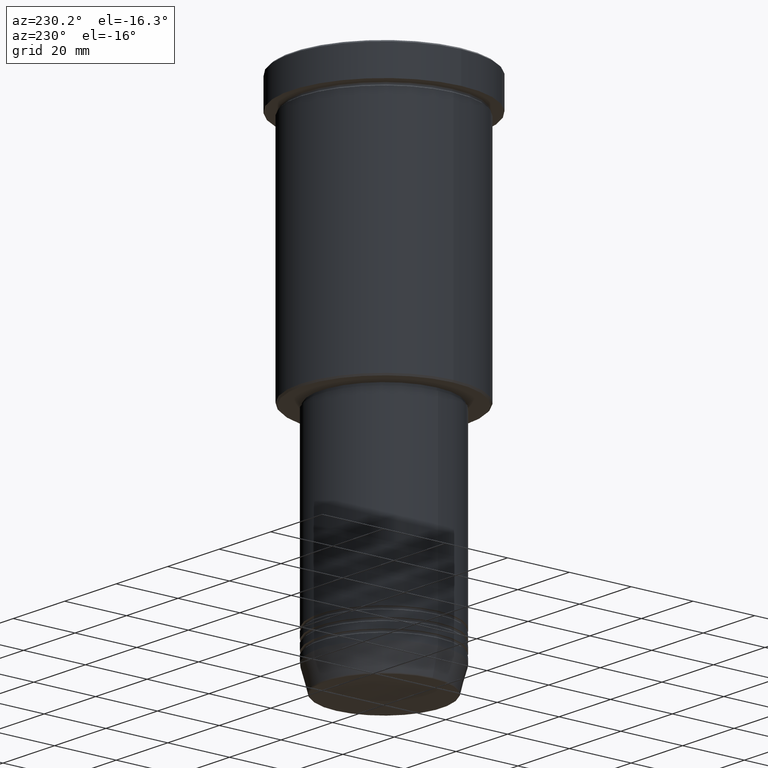
[diagram: clean part render]
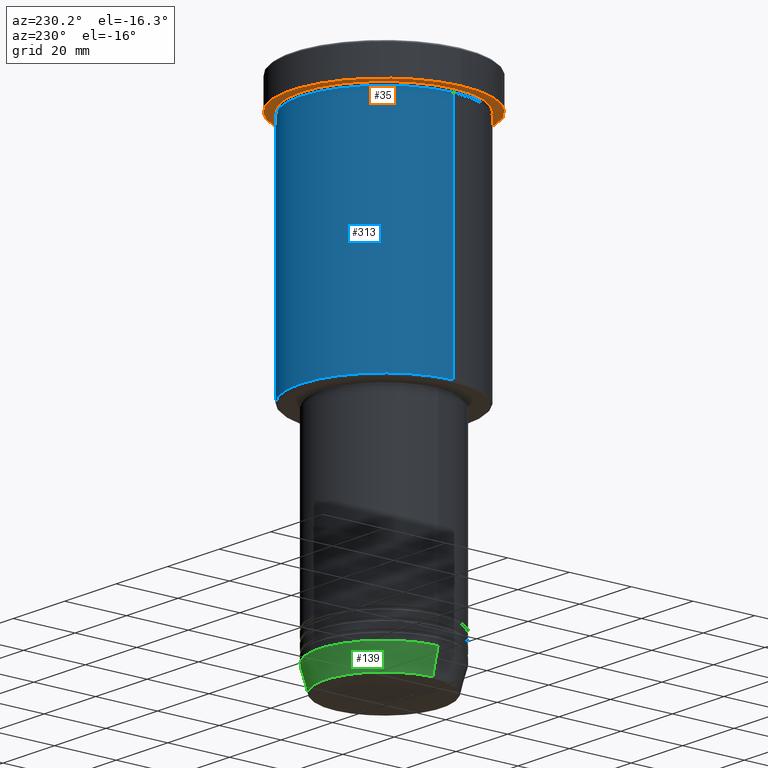
[diagram: same view with three faces highlighted in distinct colors, each labeled with its STEP entity id]
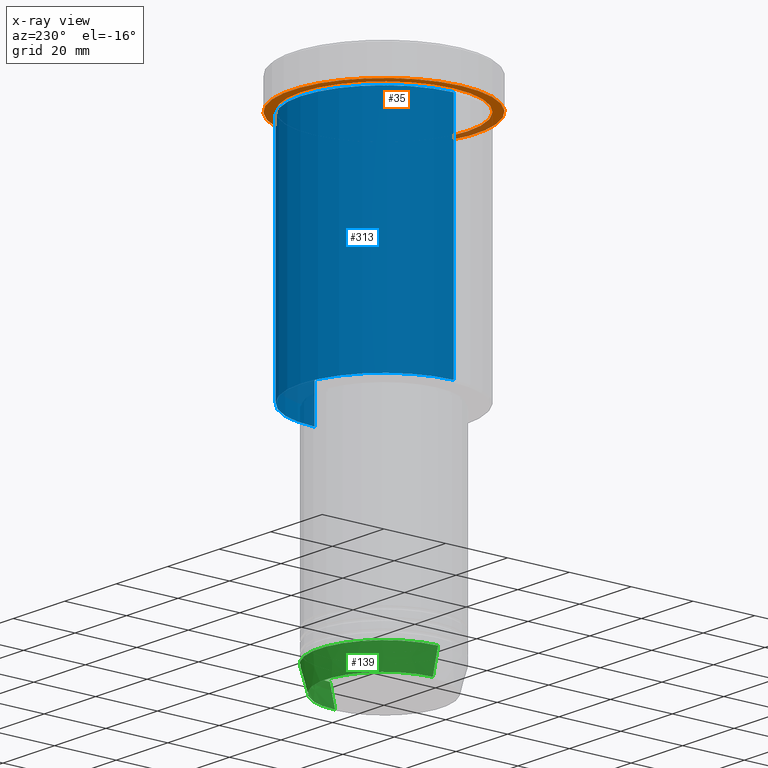
[diagram: x-ray of the same camera — body ghosted, the three highlighted faces saturated]
A machine part, auxiliary view with three faces highlighted in distinct colors.
The next image is the same camera in x-ray (body ghosted, the three faces saturated) — at least one of them is partly hidden behind the body in this view.
Their STEP definitions:

[orange] entity #35 — the highlighted planar face has unit normal (0, 0, -1).
#35 = ADVANCED_FACE ( 'NONE', ( #734, #739 ), #85, .T. ) ;
#45 = DIRECTION ( 'NONE',  ( 1.000000000000000000, 0.000000000000000000, 0.000000000000000000 ) ) ;
#62 = CARTESIAN_POINT ( 'NONE',  ( 27.00000000000000355, 3.306546357697854128E-15, -9.999999999999992895 ) ) ;
#63 = EDGE_CURVE ( 'NONE', #351, #1078, #825, .T. ) ;
#85 = PLANE ( 'NONE',  #1163 ) ;
#98 = CARTESIAN_POINT ( 'NONE',  ( -27.00000000000000355, 0.000000000000000000, -9.999999999999992895 ) ) ;
#100 = ORIENTED_EDGE ( 'NONE', *, *, #321, .F. ) ;
#168 = DIRECTION ( 'NONE',  ( -1.000000000000000000, 0.000000000000000000, -0.000000000000000000 ) ) ;
#175 = AXIS2_PLACEMENT_3D ( 'NONE', #338, #784, #45 ) ;
#236 = DIRECTION ( 'NONE',  ( -0.000000000000000000, -0.000000000000000000, 1.000000000000000000 ) ) ;
#238 = ORIENTED_EDGE ( 'NONE', *, *, #63, .T. ) ;
#246 = VERTEX_POINT ( 'NONE', #751 ) ;
#288 = CIRCLE ( 'NONE', #175, 30.00000000000000000 ) ;
#291 = DIRECTION ( 'NONE',  ( 0.000000000000000000, 0.000000000000000000, -1.000000000000000000 ) ) ;
#321 = EDGE_CURVE ( 'NONE', #246, #602, #288, .T. ) ;
#338 = CARTESIAN_POINT ( 'NONE',  ( 0.000000000000000000, 0.000000000000000000, -9.999999999999992895 ) ) ;
#348 = EDGE_LOOP ( 'NONE', ( #1167, #100 ) ) ;
#351 = VERTEX_POINT ( 'NONE', #62 ) ;
#600 = DIRECTION ( 'NONE',  ( 1.000000000000000000, 0.000000000000000000, 0.000000000000000000 ) ) ;
#602 = VERTEX_POINT ( 'NONE', #1162 ) ;
#608 = AXIS2_PLACEMENT_3D ( 'NONE', #809, #614, #702 ) ;
#614 = DIRECTION ( 'NONE',  ( -0.000000000000000000, -0.000000000000000000, 1.000000000000000000 ) ) ;
#630 = CARTESIAN_POINT ( 'NONE',  ( 0.000000000000000000, 30.00000000000000000, -9.999999999999992895 ) ) ;
#637 = DIRECTION ( 'NONE',  ( -0.000000000000000000, -0.000000000000000000, 1.000000000000000000 ) ) ;
#676 = ORIENTED_EDGE ( 'NONE', *, *, #975, .T. ) ;
#702 = DIRECTION ( 'NONE',  ( -1.000000000000000000, 0.000000000000000000, 0.000000000000000000 ) ) ;
#706 = CIRCLE ( 'NONE', #804, 30.00000000000000000 ) ;
#734 = FACE_BOUND ( 'NONE', #1007, .T. ) ;
#739 = FACE_OUTER_BOUND ( 'NONE', #348, .T. ) ;
#751 = CARTESIAN_POINT ( 'NONE',  ( -30.00000000000000000, 3.673940397442059178E-15, -9.999999999999992895 ) ) ;
#767 = CARTESIAN_POINT ( 'NONE',  ( 0.000000000000000000, 0.000000000000000000, -9.999999999999992895 ) ) ;
#784 = DIRECTION ( 'NONE',  ( -0.000000000000000000, -0.000000000000000000, 1.000000000000000000 ) ) ;
#802 = CIRCLE ( 'NONE', #608, 27.00000000000000355 ) ;
#804 = AXIS2_PLACEMENT_3D ( 'NONE', #767, #236, #600 ) ;
#809 = CARTESIAN_POINT ( 'NONE',  ( 0.000000000000000000, 0.000000000000000000, -9.999999999999992895 ) ) ;
#825 = CIRCLE ( 'NONE', #1143, 27.00000000000000355 ) ;
#888 = EDGE_CURVE ( 'NONE', #602, #246, #706, .T. ) ;
#910 = CARTESIAN_POINT ( 'NONE',  ( 0.000000000000000000, 0.000000000000000000, -9.999999999999992895 ) ) ;
#975 = EDGE_CURVE ( 'NONE', #1078, #351, #802, .T. ) ;
#1007 = EDGE_LOOP ( 'NONE', ( #676, #238 ) ) ;
#1078 = VERTEX_POINT ( 'NONE', #98 ) ;
#1143 = AXIS2_PLACEMENT_3D ( 'NONE', #910, #637, #1177 ) ;
#1162 = CARTESIAN_POINT ( 'NONE',  ( 30.00000000000000000, 0.000000000000000000, -9.999999999999992895 ) ) ;
#1163 = AXIS2_PLACEMENT_3D ( 'NONE', #630, #291, #168 ) ;
#1167 = ORIENTED_EDGE ( 'NONE', *, *, #888, .F. ) ;
#1177 = DIRECTION ( 'NONE',  ( -1.000000000000000000, 0.000000000000000000, 0.000000000000000000 ) ) ;

[blue] entity #313 — the highlighted cylindrical surface (partial cylindrical patch) has radius 27 mm, axis along (-0, -0, 1).
#44 = ORIENTED_EDGE ( 'NONE', *, *, #1112, .T. ) ;
#61 = VECTOR ( 'NONE', #197, 1000.000000000000000 ) ;
#77 = LINE ( 'NONE', #83, #80 ) ;
#80 = VECTOR ( 'NONE', #87, 1000.000000000000000 ) ;
#83 = CARTESIAN_POINT ( 'NONE',  ( 27.00000000000000355, 0.000000000000000000, 0.000000000000000000 ) ) ;
#87 = DIRECTION ( 'NONE',  ( -0.000000000000000000, -0.000000000000000000, 1.000000000000000000 ) ) ;
#122 = CARTESIAN_POINT ( 'NONE',  ( -27.00000000000000355, 3.306546357697854128E-15, -85.49999999999997158 ) ) ;
#148 = CARTESIAN_POINT ( 'NONE',  ( 0.000000000000000000, 0.000000000000000000, 0.000000000000000000 ) ) ;
#180 = DIRECTION ( 'NONE',  ( 1.000000000000000000, 0.000000000000000000, 0.000000000000000000 ) ) ;
#197 = DIRECTION ( 'NONE',  ( -0.000000000000000000, -0.000000000000000000, 1.000000000000000000 ) ) ;
#313 = ADVANCED_FACE ( 'NONE', ( #517 ), #680, .T. ) ;
#315 = EDGE_CURVE ( 'NONE', #957, #623, #974, .T. ) ;
#320 = DIRECTION ( 'NONE',  ( 1.000000000000000000, 0.000000000000000000, 0.000000000000000000 ) ) ;
#323 = VERTEX_POINT ( 'NONE', #435 ) ;
#328 = DIRECTION ( 'NONE',  ( -1.000000000000000000, 0.000000000000000000, 0.000000000000000000 ) ) ;
#334 = CARTESIAN_POINT ( 'NONE',  ( 27.00000000000000355, 0.000000000000000000, -85.49999999999997158 ) ) ;
#347 = CARTESIAN_POINT ( 'NONE',  ( 0.000000000000000000, 0.000000000000000000, -10.99999999999999289 ) ) ;
#367 = AXIS2_PLACEMENT_3D ( 'NONE', #347, #715, #180 ) ;
#388 = CARTESIAN_POINT ( 'NONE',  ( -27.00000000000000355, 3.306546357697854128E-15, 0.000000000000000000 ) ) ;
#435 = CARTESIAN_POINT ( 'NONE',  ( -27.00000000000000355, 3.306546357697854128E-15, -10.99999999999999289 ) ) ;
#470 = EDGE_CURVE ( 'NONE', #1156, #323, #807, .T. ) ;
#474 = LINE ( 'NONE', #388, #61 ) ;
#516 = EDGE_CURVE ( 'NONE', #957, #1156, #77, .T. ) ;
#517 = FACE_OUTER_BOUND ( 'NONE', #1176, .T. ) ;
#531 = ORIENTED_EDGE ( 'NONE', *, *, #516, .F. ) ;
#623 = VERTEX_POINT ( 'NONE', #122 ) ;
#680 = CYLINDRICAL_SURFACE ( 'NONE', #1048, 27.00000000000000355 ) ;
#715 = DIRECTION ( 'NONE',  ( -0.000000000000000000, -0.000000000000000000, 1.000000000000000000 ) ) ;
#744 = CARTESIAN_POINT ( 'NONE',  ( 27.00000000000000355, 0.000000000000000000, -10.99999999999999289 ) ) ;
#792 = CARTESIAN_POINT ( 'NONE',  ( 0.000000000000000000, 0.000000000000000000, -85.49999999999997158 ) ) ;
#807 = CIRCLE ( 'NONE', #367, 27.00000000000000355 ) ;
#870 = ORIENTED_EDGE ( 'NONE', *, *, #315, .T. ) ;
#881 = AXIS2_PLACEMENT_3D ( 'NONE', #792, #981, #328 ) ;
#889 = ORIENTED_EDGE ( 'NONE', *, *, #470, .F. ) ;
#957 = VERTEX_POINT ( 'NONE', #334 ) ;
#974 = CIRCLE ( 'NONE', #881, 27.00000000000000355 ) ;
#981 = DIRECTION ( 'NONE',  ( -0.000000000000000000, -0.000000000000000000, 1.000000000000000000 ) ) ;
#1048 = AXIS2_PLACEMENT_3D ( 'NONE', #148, #1137, #320 ) ;
#1112 = EDGE_CURVE ( 'NONE', #623, #323, #474, .T. ) ;
#1137 = DIRECTION ( 'NONE',  ( -0.000000000000000000, -0.000000000000000000, 1.000000000000000000 ) ) ;
#1156 = VERTEX_POINT ( 'NONE', #744 ) ;
#1176 = EDGE_LOOP ( 'NONE', ( #870, #44, #889, #531 ) ) ;

[green] entity #139 — the highlighted conical surface has half-angle 15 deg.
#4 = EDGE_CURVE ( 'NONE', #599, #509, #789, .T. ) ;
#7 = DIRECTION ( 'NONE',  ( -0.000000000000000000, -0.000000000000000000, 1.000000000000000000 ) ) ;
#32 = CONICAL_SURFACE ( 'NONE', #463, 21.00000000000000000, 0.2617993877991500740 ) ;
#64 = VERTEX_POINT ( 'NONE', #720 ) ;
#81 = FACE_OUTER_BOUND ( 'NONE', #258, .T. ) ;
#112 = AXIS2_PLACEMENT_3D ( 'NONE', #925, #1023, #476 ) ;
#139 = ADVANCED_FACE ( 'NONE', ( #81 ), #32, .T. ) ;
#163 = EDGE_CURVE ( 'NONE', #509, #64, #727, .T. ) ;
#167 = ORIENTED_EDGE ( 'NONE', *, *, #714, .T. ) ;
#223 = LINE ( 'NONE', #254, #324 ) ;
#251 = CARTESIAN_POINT ( 'NONE',  ( 18.95570587970606624, 0.000000000000000000, -160.6294095225512422 ) ) ;
#254 = CARTESIAN_POINT ( 'NONE',  ( -21.00000000000000000, 2.571758278209441661E-15, -153.0000000000000000 ) ) ;
#258 = EDGE_LOOP ( 'NONE', ( #167, #1062, #337, #908 ) ) ;
#268 = CARTESIAN_POINT ( 'NONE',  ( 21.00000000000000000, 0.000000000000000000, -153.0000000000000000 ) ) ;
#324 = VECTOR ( 'NONE', #687, 1000.000000000000000 ) ;
#326 = AXIS2_PLACEMENT_3D ( 'NONE', #478, #1013, #928 ) ;
#329 = CARTESIAN_POINT ( 'NONE',  ( 21.00000000000000000, 0.000000000000000000, -153.0000000000000000 ) ) ;
#337 = ORIENTED_EDGE ( 'NONE', *, *, #163, .F. ) ;
#358 = EDGE_CURVE ( 'NONE', #1045, #64, #223, .T. ) ;
#374 = DIRECTION ( 'NONE',  ( 1.000000000000000000, 0.000000000000000000, 0.000000000000000000 ) ) ;
#463 = AXIS2_PLACEMENT_3D ( 'NONE', #833, #7, #374 ) ;
#476 = DIRECTION ( 'NONE',  ( 1.000000000000000000, 0.000000000000000000, 0.000000000000000000 ) ) ;
#478 = CARTESIAN_POINT ( 'NONE',  ( 0.000000000000000000, 0.000000000000000000, -160.6294095225512422 ) ) ;
#509 = VERTEX_POINT ( 'NONE', #268 ) ;
#599 = VERTEX_POINT ( 'NONE', #251 ) ;
#687 = DIRECTION ( 'NONE',  ( -0.2588190451025213501, 3.169619151431772337E-17, 0.9659258262890680902 ) ) ;
#689 = CIRCLE ( 'NONE', #326, 18.95570587970606624 ) ;
#696 = DIRECTION ( 'NONE',  ( 0.2588190451025213501, 0.000000000000000000, 0.9659258262890680902 ) ) ;
#714 = EDGE_CURVE ( 'NONE', #599, #1045, #689, .T. ) ;
#720 = CARTESIAN_POINT ( 'NONE',  ( -21.00000000000000000, 2.571758278209441661E-15, -153.0000000000000000 ) ) ;
#727 = CIRCLE ( 'NONE', #112, 21.00000000000000000 ) ;
#789 = LINE ( 'NONE', #329, #805 ) ;
#805 = VECTOR ( 'NONE', #696, 1000.000000000000000 ) ;
#813 = CARTESIAN_POINT ( 'NONE',  ( -18.95570587970606624, 2.446581365662755730E-15, -160.6294095225512422 ) ) ;
#833 = CARTESIAN_POINT ( 'NONE',  ( 0.000000000000000000, 0.000000000000000000, -153.0000000000000000 ) ) ;
#908 = ORIENTED_EDGE ( 'NONE', *, *, #4, .F. ) ;
#925 = CARTESIAN_POINT ( 'NONE',  ( 0.000000000000000000, 0.000000000000000000, -153.0000000000000000 ) ) ;
#928 = DIRECTION ( 'NONE',  ( 1.000000000000000000, 0.000000000000000000, 0.000000000000000000 ) ) ;
#1013 = DIRECTION ( 'NONE',  ( -0.000000000000000000, -0.000000000000000000, 1.000000000000000000 ) ) ;
#1023 = DIRECTION ( 'NONE',  ( -0.000000000000000000, -0.000000000000000000, 1.000000000000000000 ) ) ;
#1045 = VERTEX_POINT ( 'NONE', #813 ) ;
#1062 = ORIENTED_EDGE ( 'NONE', *, *, #358, .T. ) ;